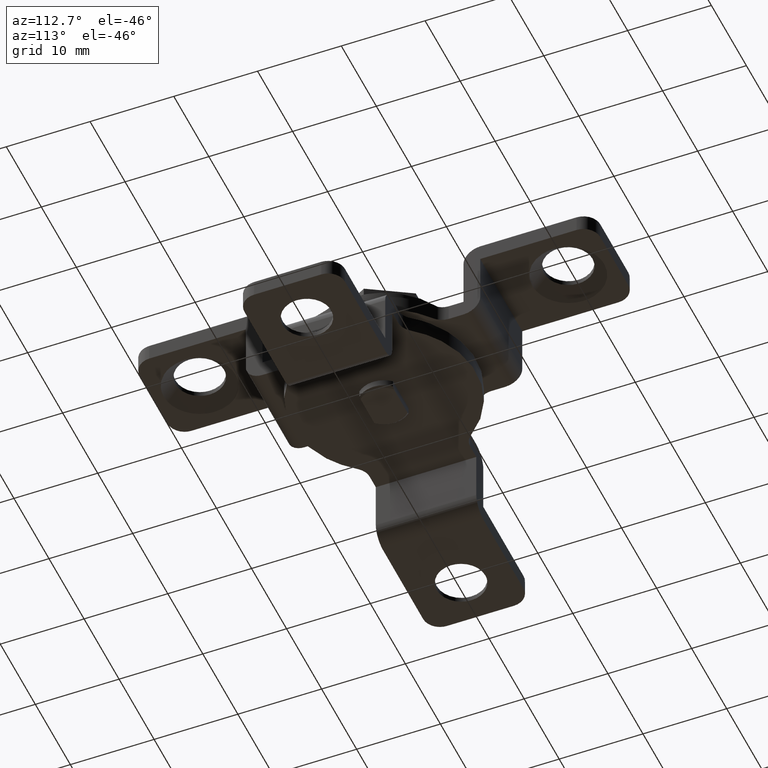
[diagram: clean part render]
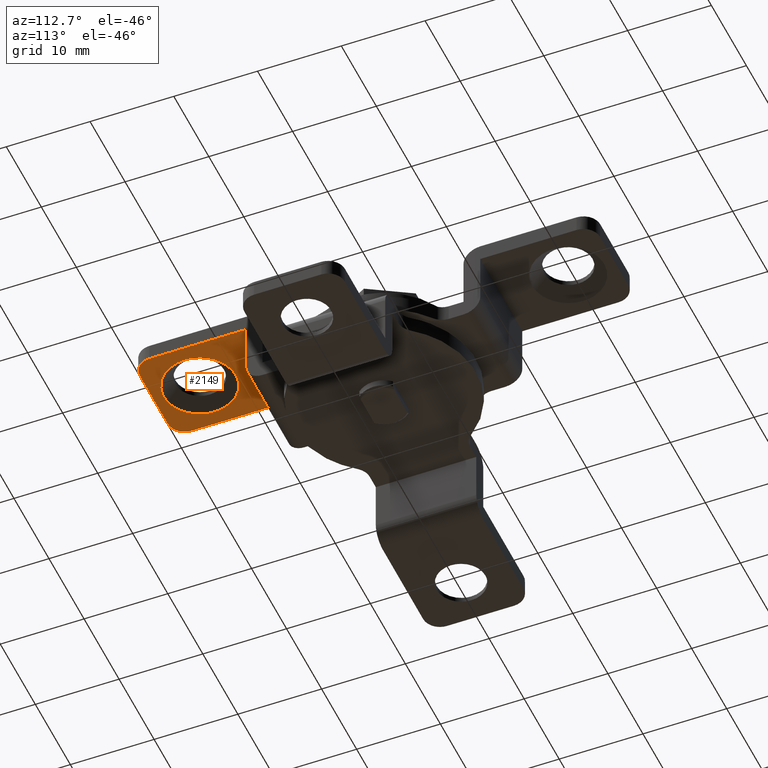
[diagram: same view with one face highlighted and labeled with its STEP entity id]
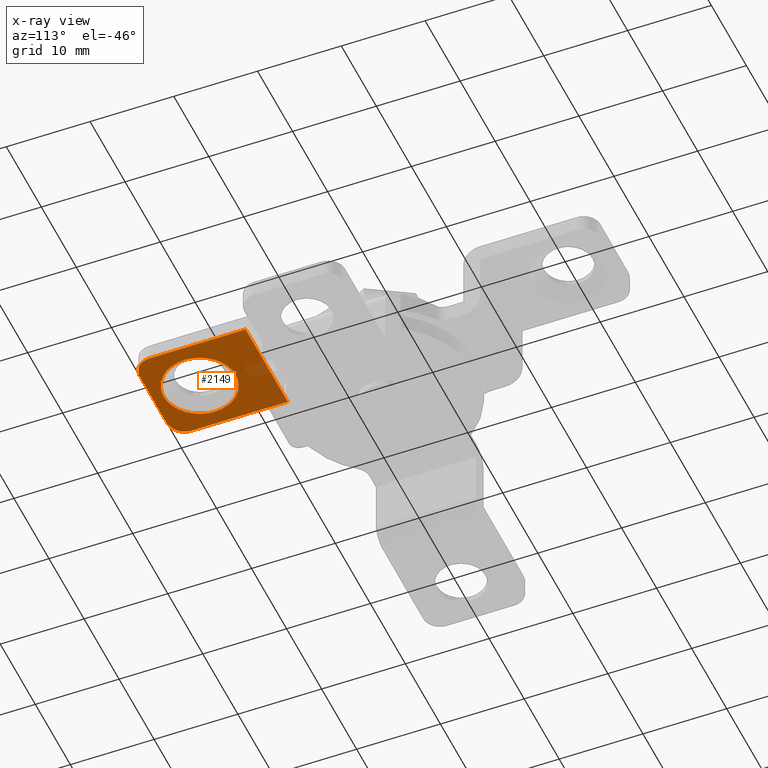
[diagram: x-ray of the same camera — body ghosted, the highlighted face saturated]
A machine part, auxiliary view. The second image highlights one B-rep face of the part: STEP entity #2149.
The next image is the same camera in x-ray: the body ghosted, the highlighted face saturated — about 15% of this face is hidden behind the body in this view.
In plain terms, the highlighted face is a freeform B-spline surface patch.
Its self-contained STEP definition (entity closure, byte-faithful):
#1110=CARTESIAN_POINT('',(-3.119109536792319,-19.040075568820669,19.000000119521260));
#1111=VERTEX_POINT('',#1110);
#1117=CARTESIAN_POINT('',(0.000000945940204,-17.700000000000539,18.999999999961851));
#1118=VERTEX_POINT('',#1117);
#1119=CARTESIAN_POINT('',(-3.119109536792319,-19.040075568820669,19.000000119521260));
#1120=CARTESIAN_POINT('',(-2.856451905662384,-18.763107222538110,19.000000109453250));
#1121=CARTESIAN_POINT('',(-2.328081883963712,-18.337475826456298,19.000000089200199));
#1122=CARTESIAN_POINT('',(-1.552593369817071,-17.968784496596669,19.000000059474729));
#1123=CARTESIAN_POINT('',(-0.799722429987431,-17.753143150158170,19.000000030616238));
#1124=CARTESIAN_POINT('',(-0.308996224536594,-17.699942101803121,19.000000011806129));
#1125=CARTESIAN_POINT('',(0.000000945940204,-17.700000000000539,18.999999999961851));
#1126=B_SPLINE_CURVE_WITH_KNOTS('',3,(#1119,#1120,#1121,#1122,#1123,#1124,#1125),.UNSPECIFIED.,.F.,.U.,(4,1,1,1,4),(9.670951E-009,1.145096881020829,2.017538965445273,2.562829007166244,3.489810021135661),.UNSPECIFIED.);
#1127=EDGE_CURVE('',#1111,#1118,#1126,.T.);
#1129=CARTESIAN_POINT('',(4.299999999999560,-22.0,18.999999999961851));
#1130=VERTEX_POINT('',#1129);
#1131=CARTESIAN_POINT('',(0.000000945940204,-17.700000000000539,18.999999999961851));
#1132=CARTESIAN_POINT('',(0.351800285950141,-17.699911078063430,18.999999999961830));
#1133=CARTESIAN_POINT('',(0.932210338707904,-17.771651776843012,18.999999999961901));
#1134=CARTESIAN_POINT('',(1.701361134690254,-18.031014286817861,18.999999999961819));
#1135=CARTESIAN_POINT('',(2.403985894908288,-18.400972834893938,18.999999999961890));
#1136=CARTESIAN_POINT('',(2.981806294531487,-18.869293542978511,18.999999999961801));
#1137=CARTESIAN_POINT('',(3.488262708091797,-19.456466086333400,18.999999999961879));
#1138=CARTESIAN_POINT('',(3.834532129638786,-20.010775136358529,18.999999999961720));
#1139=CARTESIAN_POINT('',(4.118021150109113,-20.695169272377822,18.999999999961918));
#1140=CARTESIAN_POINT('',(4.269104842054738,-21.349185204314232,18.999999999961808));
#1141=CARTESIAN_POINT('',(4.300003027587586,-21.806517982646849,18.999999999961851));
#1142=CARTESIAN_POINT('',(4.299999999999560,-22.0,18.999999999961851));
#1143=B_SPLINE_CURVE_WITH_KNOTS('',3,(#1131,#1132,#1133,#1134,#1135,#1136,#1137,#1138,#1139,#1140,#1141,#1142),.UNSPECIFIED.,.F.,.U.,(4,1,1,1,1,1,1,1,1,4),(0.000000039458754,1.055376728525038,1.741386564798962,2.427388845730997,3.429991056185252,3.957683922763201,4.749229532347705,5.382469565189356,6.174015174419205,6.754466053212295),.UNSPECIFIED.);
#1144=EDGE_CURVE('',#1118,#1130,#1143,.T.);
#1146=CARTESIAN_POINT('',(3.119109536792302,-24.959924431179321,19.000000119521271));
#1147=VERTEX_POINT('',#1146);
#1148=CARTESIAN_POINT('',(4.299999999999560,-22.0,18.999999999961851));
#1149=CARTESIAN_POINT('',(4.300043652583873,-22.289060620610389,19.000000011637809));
#1150=CARTESIAN_POINT('',(4.250077404400556,-22.782140000653769,19.000000031554698));
#1151=CARTESIAN_POINT('',(4.052557356265695,-23.488023604673788,19.000000060067102));
#1152=CARTESIAN_POINT('',(3.720434554731888,-24.217935379365059,19.000000089550390));
#1153=CARTESIAN_POINT('',(3.364971162857510,-24.700970184538448,19.000000109061389));
#1154=CARTESIAN_POINT('',(3.119109536792302,-24.959924431179321,19.000000119521271));
#1155=B_SPLINE_CURVE_WITH_KNOTS('',3,(#1148,#1149,#1150,#1151,#1152,#1153,#1154),.UNSPECIFIED.,.F.,.U.,(4,1,1,1,4),(0.000000010551589,0.867174938550902,1.479306567880680,2.193440947730328,3.264657373003894),.UNSPECIFIED.);
#1156=EDGE_CURVE('',#1130,#1147,#1155,.T.);
#1190=CARTESIAN_POINT('',(-0.000000945940263,-26.299999999999461,18.999999999961851));
#1191=VERTEX_POINT('',#1190);
#1192=CARTESIAN_POINT('',(3.119109536792302,-24.959924431179321,19.000000119521271));
#1193=CARTESIAN_POINT('',(2.831454650926665,-25.263298702217369,19.000000108495101));
#1194=CARTESIAN_POINT('',(2.296762495896760,-25.682868345333159,19.000000087999691));
#1195=CARTESIAN_POINT('',(1.517566035753308,-26.041225344188110,19.000000058132059));
#1196=CARTESIAN_POINT('',(0.799722820810355,-26.246858762331239,19.000000030616391));
#1197=CARTESIAN_POINT('',(0.308996498664427,-26.300057777616608,19.000000011806051));
#1198=CARTESIAN_POINT('',(-0.000000945940263,-26.299999999999461,18.999999999961851));
#1199=B_SPLINE_CURVE_WITH_KNOTS('',3,(#1192,#1193,#1194,#1195,#1196,#1197,#1198),.UNSPECIFIED.,.F.,.U.,(4,1,1,1,4),(9.670806E-009,1.254151149365038,2.017538965445286,2.562829007166270,3.489810021135710),.UNSPECIFIED.);
#1200=EDGE_CURVE('',#1147,#1191,#1199,.T.);
#1202=CARTESIAN_POINT('',(-4.299999999999560,-22.0,18.999999999961851));
#1203=VERTEX_POINT('',#1202);
#1204=CARTESIAN_POINT('',(-0.000000945940263,-26.299999999999461,18.999999999961851));
#1205=CARTESIAN_POINT('',(-0.439773942764564,-26.300234192800730,18.999999999961840));
#1206=CARTESIAN_POINT('',(-1.108035763832206,-26.196535472685170,18.999999999961862));
#1207=CARTESIAN_POINT('',(-1.859824415889894,-25.890437414877152,18.999999999961869));
#1208=CARTESIAN_POINT('',(-2.380816948420024,-25.595315015587190,18.999999999961830));
#1209=CARTESIAN_POINT('',(-2.818164694437129,-25.266769403821169,18.999999999961879));
#1210=CARTESIAN_POINT('',(-3.316641060268991,-24.768339847113950,18.999999999961961));
#1211=CARTESIAN_POINT('',(-3.686419920967676,-24.250071710133248,18.999999999961751));
#1212=CARTESIAN_POINT('',(-4.007191028167751,-23.602918719605210,18.999999999962071));
#1213=CARTESIAN_POINT('',(-4.235599319903145,-22.897049945249549,18.999999999961659));
#1214=CARTESIAN_POINT('',(-4.300052665522928,-22.316618258413541,18.999999999961940));
#1215=CARTESIAN_POINT('',(-4.299999999999560,-22.0,18.999999999961851));
#1216=B_SPLINE_CURVE_WITH_KNOTS('',3,(#1204,#1205,#1206,#1207,#1208,#1209,#1210,#1211,#1212,#1213,#1214,#1215),.UNSPECIFIED.,.F.,.U.,(4,1,1,1,1,1,1,1,1,4),(0.000000039461466,1.319227214047437,2.005236397470185,2.427388845731685,3.113400429655005,3.641066034811232,4.538150497439341,5.013079530478063,5.804620475578053,6.754466053212262),.UNSPECIFIED.);
#1217=EDGE_CURVE('',#1191,#1203,#1216,.T.);
#1219=CARTESIAN_POINT('',(-4.299999999999560,-22.0,18.999999999961851));
#1220=CARTESIAN_POINT('',(-4.300037589287864,-21.710941316918561,19.000000011637681));
#1221=CARTESIAN_POINT('',(-4.246649325779258,-21.183849872038600,19.000000032928469));
#1222=CARTESIAN_POINT('',(-4.040567217423745,-20.479722273599769,19.000000061369921));
#1223=CARTESIAN_POINT('',(-3.700109839791973,-19.754467583886449,19.000000090665100));
#1224=CARTESIAN_POINT('',(-3.364975826723094,-19.299028309998690,19.000000109061450));
#1225=CARTESIAN_POINT('',(-3.119109536792319,-19.040075568820669,19.000000119521260));
#1226=B_SPLINE_CURVE_WITH_KNOTS('',3,(#1219,#1220,#1221,#1222,#1223,#1224,#1225),.UNSPECIFIED.,.F.,.U.,(4,1,1,1,4),(0.000000010550165,0.867174938550351,1.581324583605738,2.193440947730215,3.264657373003931),.UNSPECIFIED.);
#1227=EDGE_CURVE('',#1203,#1111,#1226,.T.);
#1394=CARTESIAN_POINT('',(6.0,-25.500000000000000,18.999999999961851));
#1395=VERTEX_POINT('',#1394);
#1396=CARTESIAN_POINT('',(4.0,-27.500000000000000,18.999999999961851));
#1397=VERTEX_POINT('',#1396);
#1398=CARTESIAN_POINT('',(6.0,-25.500000000000000,18.999999999961851));
#1399=CARTESIAN_POINT('',(6.000151241105728,-25.729090736221391,18.999999999961862));
#1400=CARTESIAN_POINT('',(5.931778940555078,-26.121696484539441,18.999999999961869));
#1401=CARTESIAN_POINT('',(5.698228239496600,-26.585532630463259,18.999999999961851));
#1402=CARTESIAN_POINT('',(5.418881910534078,-26.930214370177641,18.999999999961918));
#1403=CARTESIAN_POINT('',(5.105328178117096,-27.184335575988950,18.999999999961641));
#1404=CARTESIAN_POINT('',(4.732211982842850,-27.375019715697739,18.999999999962149));
#1405=CARTESIAN_POINT('',(4.368152883693943,-27.478164981832489,18.999999999961169));
#1406=CARTESIAN_POINT('',(4.114534483516132,-27.500007428805262,18.999999999962611));
#1407=CARTESIAN_POINT('',(4.0,-27.500000000000000,18.999999999961851));
#1408=B_SPLINE_CURVE_WITH_KNOTS('',3,(#1398,#1399,#1400,#1401,#1402,#1403,#1404,#1405,#1406,#1407),.UNSPECIFIED.,.F.,.U.,(4,1,1,1,1,1,1,4),(0.000000065954841,0.687227115922505,1.178115859340627,1.546281734581058,2.012585521807756,2.380753434533155,2.798006088587935,3.141612365755624),.UNSPECIFIED.);
#1409=EDGE_CURVE('',#1395,#1397,#1408,.T.);
#1455=CARTESIAN_POINT('',(-4.000000000000225,-27.500000000000000,18.999999999961851));
#1456=VERTEX_POINT('',#1455);
#1457=CARTESIAN_POINT('',(-6.000000000000230,-25.500000000000000,18.999999999961851));
#1458=VERTEX_POINT('',#1457);
#1459=CARTESIAN_POINT('',(-4.000000000000225,-27.500000000000000,18.999999999961851));
#1460=CARTESIAN_POINT('',(-4.204548169896462,-27.500107238381659,18.999999999961911));
#1461=CARTESIAN_POINT('',(-4.474459735932030,-27.458218345255290,18.999999999961808));
#1462=CARTESIAN_POINT('',(-4.873718168571807,-27.309804694160889,18.999999999961879));
#1463=CARTESIAN_POINT('',(-5.216538676020190,-27.112851583791858,18.999999999961851));
#1464=CARTESIAN_POINT('',(-5.555093544633389,-26.786529650541059,18.999999999961890));
#1465=CARTESIAN_POINT('',(-5.786114087635410,-26.426537180544042,18.999999999961830));
#1466=CARTESIAN_POINT('',(-5.953826710232569,-26.007188123993689,18.999999999961869));
#1467=CARTESIAN_POINT('',(-6.000089170066256,-25.696361802279981,18.999999999961851));
#1468=CARTESIAN_POINT('',(-6.000000000000230,-25.500000000000000,18.999999999961851));
#1469=B_SPLINE_CURVE_WITH_KNOTS('',3,(#1459,#1460,#1461,#1462,#1463,#1464,#1465,#1466,#1467,#1468),.UNSPECIFIED.,.F.,.U.,(4,1,1,1,1,1,1,4),(0.000000065936617,0.613594271031676,0.809947736894603,1.276286568296617,1.791687940722713,2.208945079712464,2.552561698457626,3.141612365755728),.UNSPECIFIED.);
#1470=EDGE_CURVE('',#1456,#1458,#1469,.T.);
#2093=CARTESIAN_POINT('',(6.0,-14.0,18.999999999961851));
#2094=VERTEX_POINT('',#2093);
#2100=CARTESIAN_POINT('',(-6.000000000000230,-14.0,18.999999999961851));
#2101=VERTEX_POINT('',#2100);
#2102=CARTESIAN_POINT('',(-6.000000000000230,-14.0,18.999999999961851));
#2103=CARTESIAN_POINT('',(6.0,-14.0,18.999999999961851));
#2104=QUASI_UNIFORM_CURVE('',1,(#2102,#2103),.UNSPECIFIED.,.F.,.U.);
#2105=EDGE_CURVE('',#2101,#2094,#2104,.T.);
#2116=CARTESIAN_POINT('',(-6.599399976741914,-28.174324973834381,18.999999999961851));
#2117=CARTESIAN_POINT('',(6.599400298606766,-28.174324973834381,18.999999999961851));
#2118=CARTESIAN_POINT('',(-6.599399976741914,-13.325674664067400,18.999999999961851));
#2119=CARTESIAN_POINT('',(6.599400298606766,-13.325674664067400,18.999999999961851));
#2120=B_SPLINE_SURFACE_WITH_KNOTS('',1,1,((#2116,#2118),(#2117,#2119)),.UNSPECIFIED.,.F.,.F.,.U.,(2,2),(2,2),(0.0,13.198800275348679),(0.0,14.848650309766990),.UNSPECIFIED.);
#2121=CARTESIAN_POINT('',(-4.000000000000225,-27.500000000000000,18.999999999961851));
#2122=CARTESIAN_POINT('',(4.0,-27.500000000000000,18.999999999961851));
#2123=QUASI_UNIFORM_CURVE('',1,(#2121,#2122),.UNSPECIFIED.,.F.,.U.);
#2124=EDGE_CURVE('',#1456,#1397,#2123,.T.);
#2125=ORIENTED_EDGE('',*,*,#2124,.F.);
#2126=ORIENTED_EDGE('',*,*,#1470,.T.);
#2127=CARTESIAN_POINT('',(-6.000000000000230,-14.0,18.999999999961851));
#2128=CARTESIAN_POINT('',(-6.000000000000230,-25.500000000000000,18.999999999961851));
#2129=QUASI_UNIFORM_CURVE('',1,(#2127,#2128),.UNSPECIFIED.,.F.,.U.);
#2130=EDGE_CURVE('',#2101,#1458,#2129,.T.);
#2131=ORIENTED_EDGE('',*,*,#2130,.F.);
#2132=ORIENTED_EDGE('',*,*,#2105,.T.);
#2133=CARTESIAN_POINT('',(6.0,-14.0,18.999999999961851));
#2134=CARTESIAN_POINT('',(6.0,-25.500000000000000,18.999999999961851));
#2135=QUASI_UNIFORM_CURVE('',1,(#2133,#2134),.UNSPECIFIED.,.F.,.U.);
#2136=EDGE_CURVE('',#2094,#1395,#2135,.T.);
#2137=ORIENTED_EDGE('',*,*,#2136,.T.);
#2138=ORIENTED_EDGE('',*,*,#1409,.T.);
#2139=EDGE_LOOP('',(#2125,#2126,#2131,#2132,#2137,#2138));
#2140=FACE_OUTER_BOUND('',#2139,.T.);
#2141=ORIENTED_EDGE('',*,*,#1144,.F.);
#2142=ORIENTED_EDGE('',*,*,#1127,.F.);
#2143=ORIENTED_EDGE('',*,*,#1227,.F.);
#2144=ORIENTED_EDGE('',*,*,#1217,.F.);
#2145=ORIENTED_EDGE('',*,*,#1200,.F.);
#2146=ORIENTED_EDGE('',*,*,#1156,.F.);
#2147=EDGE_LOOP('',(#2141,#2142,#2143,#2144,#2145,#2146));
#2148=FACE_BOUND('',#2147,.T.);
#2149=ADVANCED_FACE('',(#2140,#2148),#2120,.F.);